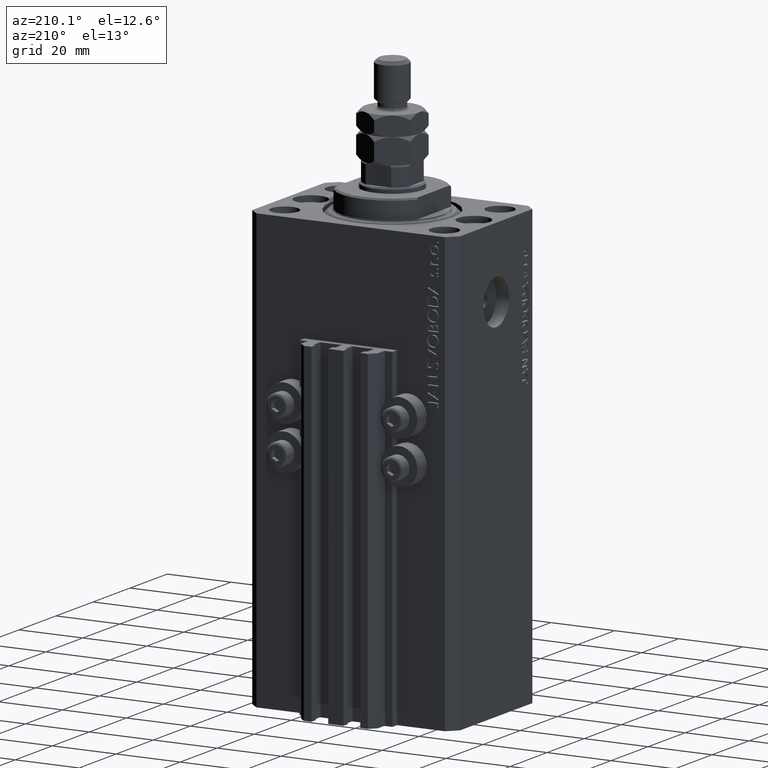
[diagram: clean part render]
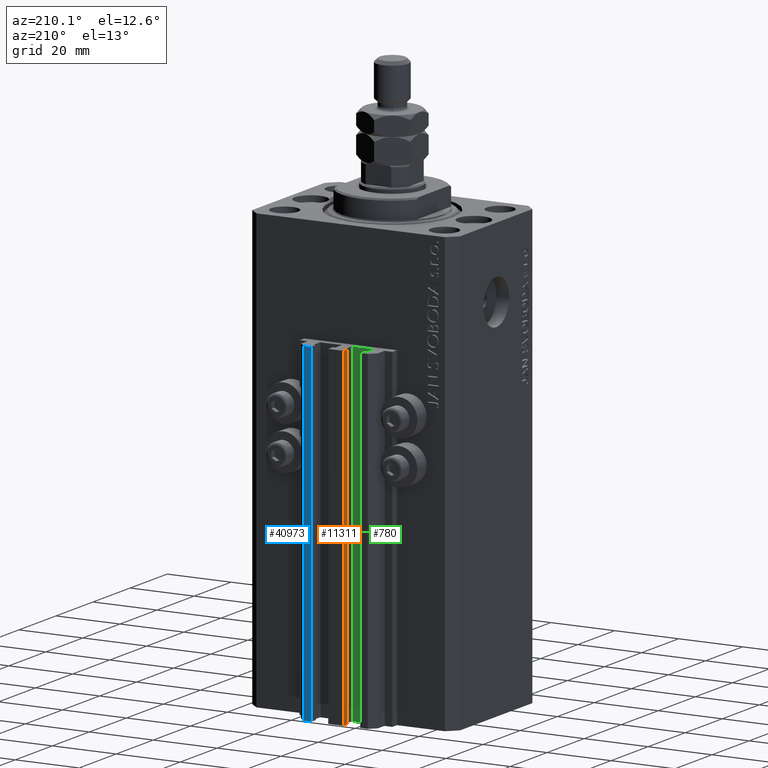
[diagram: same view with three faces highlighted in distinct colors, each labeled with its STEP entity id]
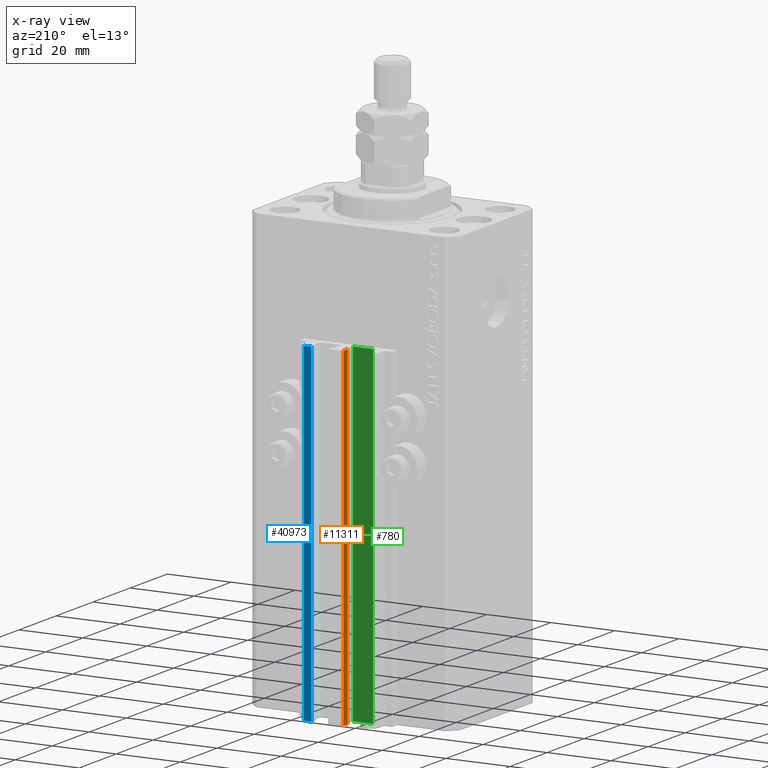
[diagram: x-ray of the same camera — body ghosted, the three highlighted faces saturated]
A machine part, auxiliary view with three faces highlighted in distinct colors.
The next image is the same camera in x-ray (body ghosted, the three faces saturated) — at least one of them is partly hidden behind the body in this view.
Their STEP definitions:

[orange] entity #11311 — the highlighted planar face has unit normal (-1, 0, 0).
#1281 = FACE_OUTER_BOUND ( 'NONE', #13340, .T. ) ;
#2294 = EDGE_CURVE ( 'NONE', #7807, #4493, #18895, .T. ) ;
#4493 = VERTEX_POINT ( 'NONE', #47820 ) ;
#4603 = LINE ( 'NONE', #34464, #29047 ) ;
#5235 = DIRECTION ( 'NONE',  ( 0.000000000000000000, 0.000000000000000000, 1.000000000000000000 ) ) ;
#6281 = LINE ( 'NONE', #28496, #47003 ) ;
#6726 = DIRECTION ( 'NONE',  ( 0.000000000000000000, 0.000000000000000000, 1.000000000000000000 ) ) ;
#7807 = VERTEX_POINT ( 'NONE', #26554 ) ;
#10095 = EDGE_CURVE ( 'NONE', #4493, #12500, #21767, .T. ) ;
#11311 = ADVANCED_FACE ( 'NONE', ( #1281 ), #43446, .T. ) ;
#12500 = VERTEX_POINT ( 'NONE', #19187 ) ;
#13340 = EDGE_LOOP ( 'NONE', ( #15517, #46094, #20689, #17709 ) ) ;
#15517 = ORIENTED_EDGE ( 'NONE', *, *, #35027, .F. ) ;
#16319 = CARTESIAN_POINT ( 'NONE',  ( -2.350000000000003197, 30.49999999999949907, -137.0000000000000000 ) ) ;
#17709 = ORIENTED_EDGE ( 'NONE', *, *, #10095, .T. ) ;
#18895 = LINE ( 'NONE', #25578, #35460 ) ;
#19187 = CARTESIAN_POINT ( 'NONE',  ( -2.350000000000003197, 28.09999999999950049, -33.00000000000000000 ) ) ;
#20689 = ORIENTED_EDGE ( 'NONE', *, *, #2294, .T. ) ;
#21332 = DIRECTION ( 'NONE',  ( 0.000000000000000000, -1.000000000000000000, 0.000000000000000000 ) ) ;
#21767 = LINE ( 'NONE', #29893, #27032 ) ;
#25578 = CARTESIAN_POINT ( 'NONE',  ( -2.350000000000003197, 30.49999999999949907, -137.0000000000000000 ) ) ;
#26554 = CARTESIAN_POINT ( 'NONE',  ( -2.350000000000003197, 30.49999999999949907, -137.0000000000000000 ) ) ;
#27032 = VECTOR ( 'NONE', #6726, 1000.000000000000000 ) ;
#27069 = AXIS2_PLACEMENT_3D ( 'NONE', #16319, #27681, #5235 ) ;
#27681 = DIRECTION ( 'NONE',  ( -1.000000000000000000, 0.000000000000000000, 0.000000000000000000 ) ) ;
#27789 = DIRECTION ( 'NONE',  ( 0.000000000000000000, 0.000000000000000000, 1.000000000000000000 ) ) ;
#28496 = CARTESIAN_POINT ( 'NONE',  ( -2.350000000000003197, 30.49999999999949907, -33.00000000000000000 ) ) ;
#29047 = VECTOR ( 'NONE', #27789, 1000.000000000000000 ) ;
#29848 = CARTESIAN_POINT ( 'NONE',  ( -2.350000000000003197, 30.49999999999949907, -33.00000000000000000 ) ) ;
#29893 = CARTESIAN_POINT ( 'NONE',  ( -2.350000000000003197, 28.09999999999950049, -137.0000000000000000 ) ) ;
#33972 = DIRECTION ( 'NONE',  ( 0.000000000000000000, -1.000000000000000000, 0.000000000000000000 ) ) ;
#34464 = CARTESIAN_POINT ( 'NONE',  ( -2.350000000000003197, 30.49999999999949907, -137.0000000000000000 ) ) ;
#35027 = EDGE_CURVE ( 'NONE', #40535, #12500, #6281, .T. ) ;
#35460 = VECTOR ( 'NONE', #33972, 1000.000000000000000 ) ;
#40056 = EDGE_CURVE ( 'NONE', #7807, #40535, #4603, .T. ) ;
#40535 = VERTEX_POINT ( 'NONE', #29848 ) ;
#43446 = PLANE ( 'NONE',  #27069 ) ;
#46094 = ORIENTED_EDGE ( 'NONE', *, *, #40056, .F. ) ;
#47003 = VECTOR ( 'NONE', #21332, 1000.000000000000000 ) ;
#47820 = CARTESIAN_POINT ( 'NONE',  ( -2.350000000000003197, 28.09999999999950049, -137.0000000000000000 ) ) ;

[blue] entity #40973 — the highlighted planar face has unit normal (-0, 1, 0).
#84 = EDGE_CURVE ( 'NONE', #19955, #34419, #16572, .T. ) ;
#7367 = CARTESIAN_POINT ( 'NONE',  ( 7.649999999999995026, 30.49999999999949196, -137.0000000000000000 ) ) ;
#9095 = EDGE_LOOP ( 'NONE', ( #41965, #34056, #43016, #39740 ) ) ;
#14297 = DIRECTION ( 'NONE',  ( -1.000000000000000000, -1.476360405086644852E-15, 0.000000000000000000 ) ) ;
#16088 = CARTESIAN_POINT ( 'NONE',  ( 9.999999999999994671, 30.49999999999949551, -137.0000000000000000 ) ) ;
#16136 = LINE ( 'NONE', #31185, #32233 ) ;
#16572 = LINE ( 'NONE', #16088, #25254 ) ;
#18579 = DIRECTION ( 'NONE',  ( -1.476360405086645049E-15, 1.000000000000000000, 0.000000000000000000 ) ) ;
#19200 = VERTEX_POINT ( 'NONE', #21101 ) ;
#19955 = VERTEX_POINT ( 'NONE', #36160 ) ;
#20194 = EDGE_CURVE ( 'NONE', #34419, #19200, #16136, .T. ) ;
#21101 = CARTESIAN_POINT ( 'NONE',  ( 7.649999999999995026, 30.49999999999949196, -33.00000000000000000 ) ) ;
#21955 = LINE ( 'NONE', #29360, #32090 ) ;
#23268 = CARTESIAN_POINT ( 'NONE',  ( 9.999999999999994671, 30.49999999999949551, -33.00000000000000000 ) ) ;
#23974 = DIRECTION ( 'NONE',  ( -1.000000000000000000, -1.476360405086644852E-15, 0.000000000000000000 ) ) ;
#25254 = VECTOR ( 'NONE', #23974, 1000.000000000000000 ) ;
#25501 = FACE_OUTER_BOUND ( 'NONE', #9095, .T. ) ;
#25639 = LINE ( 'NONE', #48552, #31931 ) ;
#26352 = EDGE_CURVE ( 'NONE', #43684, #19200, #25639, .T. ) ;
#28715 = DIRECTION ( 'NONE',  ( -1.000000000000000000, -1.476360405086645049E-15, 0.000000000000000000 ) ) ;
#29360 = CARTESIAN_POINT ( 'NONE',  ( 9.999999999999994671, 30.49999999999949551, -137.0000000000000000 ) ) ;
#30669 = AXIS2_PLACEMENT_3D ( 'NONE', #43754, #18579, #28715 ) ;
#31185 = CARTESIAN_POINT ( 'NONE',  ( 7.649999999999995026, 30.49999999999949196, -137.0000000000000000 ) ) ;
#31931 = VECTOR ( 'NONE', #14297, 1000.000000000000000 ) ;
#32090 = VECTOR ( 'NONE', #36996, 1000.000000000000000 ) ;
#32233 = VECTOR ( 'NONE', #46464, 1000.000000000000000 ) ;
#34056 = ORIENTED_EDGE ( 'NONE', *, *, #35360, .F. ) ;
#34419 = VERTEX_POINT ( 'NONE', #7367 ) ;
#35360 = EDGE_CURVE ( 'NONE', #19955, #43684, #21955, .T. ) ;
#36160 = CARTESIAN_POINT ( 'NONE',  ( 9.999999999999994671, 30.49999999999949551, -137.0000000000000000 ) ) ;
#36996 = DIRECTION ( 'NONE',  ( 0.000000000000000000, 0.000000000000000000, 1.000000000000000000 ) ) ;
#39740 = ORIENTED_EDGE ( 'NONE', *, *, #20194, .T. ) ;
#40973 = ADVANCED_FACE ( 'NONE', ( #25501 ), #48188, .T. ) ;
#41965 = ORIENTED_EDGE ( 'NONE', *, *, #26352, .F. ) ;
#43016 = ORIENTED_EDGE ( 'NONE', *, *, #84, .T. ) ;
#43684 = VERTEX_POINT ( 'NONE', #23268 ) ;
#43754 = CARTESIAN_POINT ( 'NONE',  ( 9.999999999999994671, 30.49999999999949551, -137.0000000000000000 ) ) ;
#46464 = DIRECTION ( 'NONE',  ( 0.000000000000000000, 0.000000000000000000, 1.000000000000000000 ) ) ;
#48188 = PLANE ( 'NONE',  #30669 ) ;
#48552 = CARTESIAN_POINT ( 'NONE',  ( 9.999999999999994671, 30.49999999999949551, -33.00000000000000000 ) ) ;

[green] entity #780 — the highlighted planar face has unit normal (0, 1, 0).
#780 = ADVANCED_FACE ( 'NONE', ( #2028 ), #21751, .T. ) ;
#1693 = VERTEX_POINT ( 'NONE', #29649 ) ;
#2028 = FACE_OUTER_BOUND ( 'NONE', #40941, .T. ) ;
#5271 = CARTESIAN_POINT ( 'NONE',  ( -1.800000000000000933, 24.49999999999949551, -33.00000000000000000 ) ) ;
#6368 = LINE ( 'NONE', #13520, #37013 ) ;
#11823 = VERTEX_POINT ( 'NONE', #32676 ) ;
#13377 = AXIS2_PLACEMENT_3D ( 'NONE', #47409, #16830, #13617 ) ;
#13520 = CARTESIAN_POINT ( 'NONE',  ( -8.199999999999999289, 24.49999999999949551, -137.0000000000000000 ) ) ;
#13617 = DIRECTION ( 'NONE',  ( 0.000000000000000000, 0.000000000000000000, 1.000000000000000000 ) ) ;
#13751 = ORIENTED_EDGE ( 'NONE', *, *, #22412, .T. ) ;
#14797 = VERTEX_POINT ( 'NONE', #24793 ) ;
#16405 = CARTESIAN_POINT ( 'NONE',  ( -1.800000000000000933, 24.49999999999949551, -137.0000000000000000 ) ) ;
#16830 = DIRECTION ( 'NONE',  ( 0.000000000000000000, 1.000000000000000000, -0.000000000000000000 ) ) ;
#18523 = CARTESIAN_POINT ( 'NONE',  ( -1.800000000000000933, 24.49999999999949551, -137.0000000000000000 ) ) ;
#21232 = VERTEX_POINT ( 'NONE', #41265 ) ;
#21751 = PLANE ( 'NONE',  #13377 ) ;
#21897 = DIRECTION ( 'NONE',  ( 0.000000000000000000, 0.000000000000000000, 1.000000000000000000 ) ) ;
#21988 = DIRECTION ( 'NONE',  ( -1.000000000000000000, 0.000000000000000000, 0.000000000000000000 ) ) ;
#22412 = EDGE_CURVE ( 'NONE', #1693, #11823, #6368, .T. ) ;
#24057 = DIRECTION ( 'NONE',  ( 0.000000000000000000, 0.000000000000000000, 1.000000000000000000 ) ) ;
#24793 = CARTESIAN_POINT ( 'NONE',  ( -1.800000000000000933, 24.49999999999949551, -137.0000000000000000 ) ) ;
#27720 = DIRECTION ( 'NONE',  ( -1.000000000000000000, 0.000000000000000000, 0.000000000000000000 ) ) ;
#29649 = CARTESIAN_POINT ( 'NONE',  ( -8.199999999999999289, 24.49999999999949551, -137.0000000000000000 ) ) ;
#30552 = ORIENTED_EDGE ( 'NONE', *, *, #38198, .F. ) ;
#31368 = EDGE_CURVE ( 'NONE', #21232, #11823, #46938, .T. ) ;
#32676 = CARTESIAN_POINT ( 'NONE',  ( -8.199999999999999289, 24.49999999999949551, -33.00000000000000000 ) ) ;
#33715 = VECTOR ( 'NONE', #24057, 1000.000000000000000 ) ;
#36306 = LINE ( 'NONE', #18523, #42482 ) ;
#37013 = VECTOR ( 'NONE', #21897, 1000.000000000000000 ) ;
#37714 = ORIENTED_EDGE ( 'NONE', *, *, #41822, .T. ) ;
#38198 = EDGE_CURVE ( 'NONE', #14797, #21232, #46995, .T. ) ;
#39802 = VECTOR ( 'NONE', #27720, 1000.000000000000000 ) ;
#40407 = ORIENTED_EDGE ( 'NONE', *, *, #31368, .F. ) ;
#40941 = EDGE_LOOP ( 'NONE', ( #40407, #30552, #37714, #13751 ) ) ;
#41265 = CARTESIAN_POINT ( 'NONE',  ( -1.800000000000000933, 24.49999999999949551, -33.00000000000000000 ) ) ;
#41822 = EDGE_CURVE ( 'NONE', #14797, #1693, #36306, .T. ) ;
#42482 = VECTOR ( 'NONE', #21988, 1000.000000000000000 ) ;
#46938 = LINE ( 'NONE', #5271, #39802 ) ;
#46995 = LINE ( 'NONE', #16405, #33715 ) ;
#47409 = CARTESIAN_POINT ( 'NONE',  ( -1.800000000000000933, 24.49999999999949551, -137.0000000000000000 ) ) ;